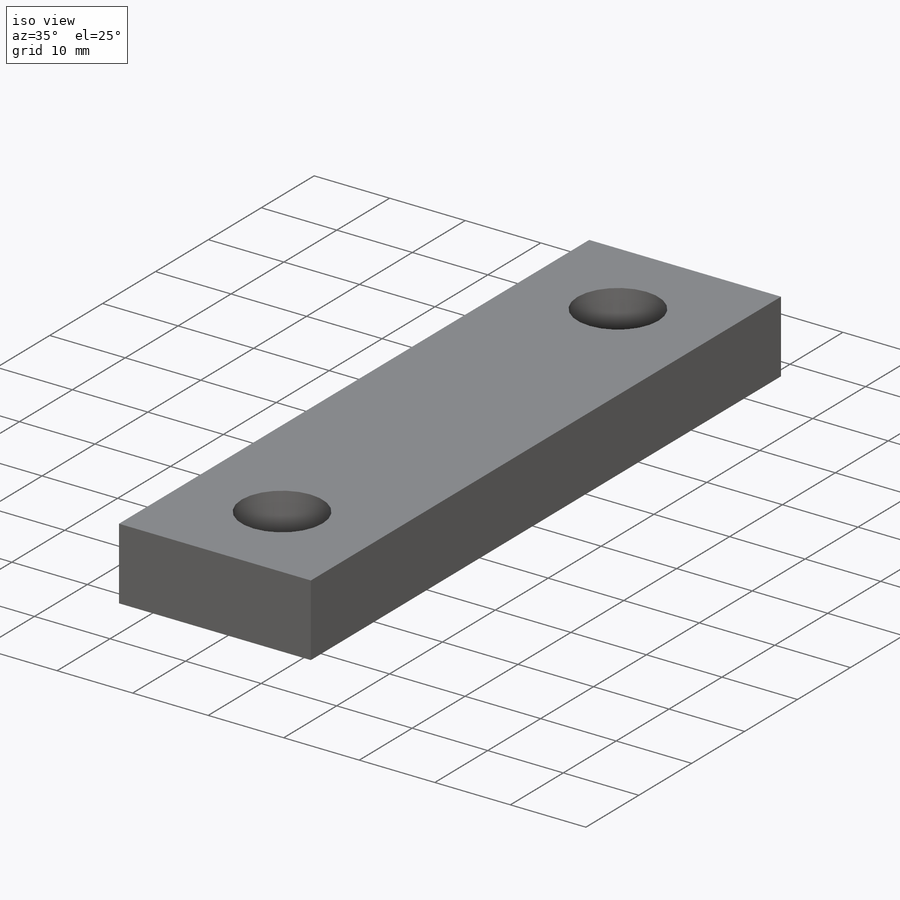
[diagram: iso view]
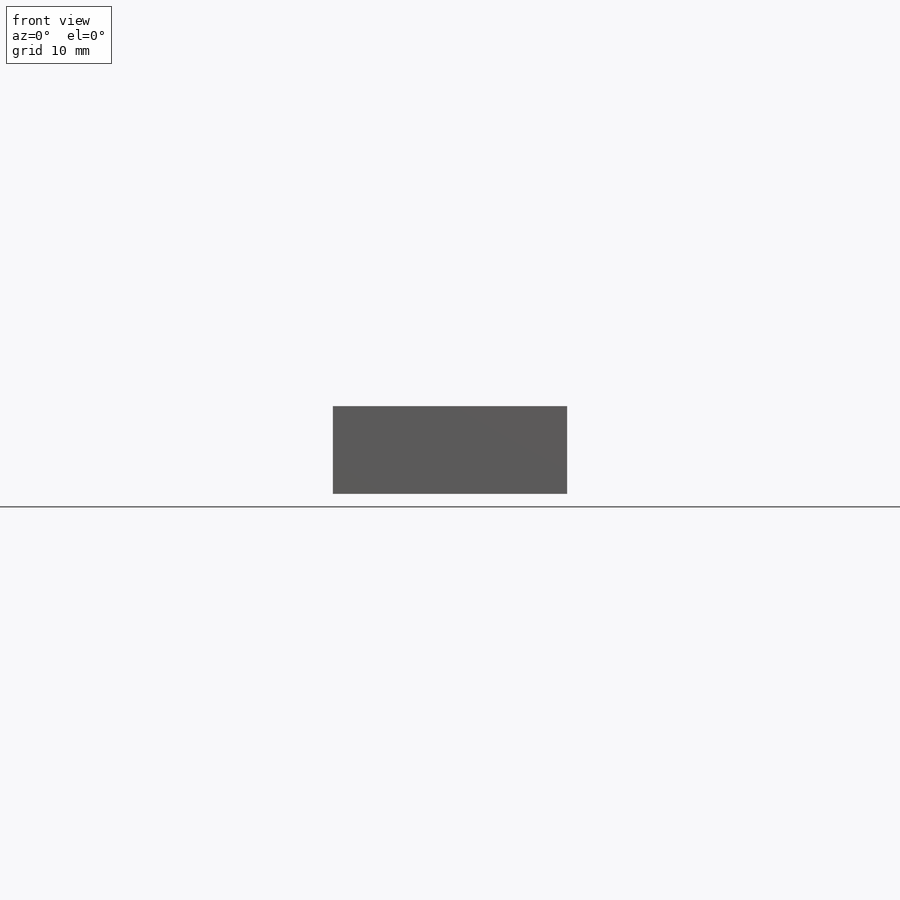
[diagram: front view]
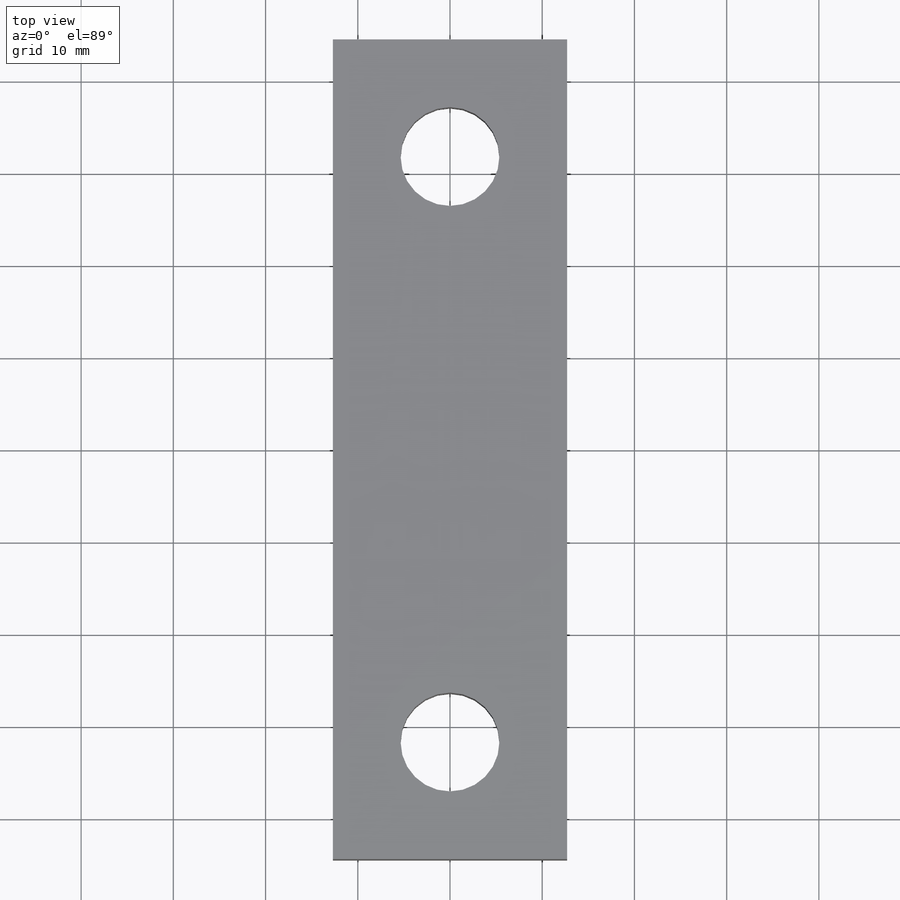
[diagram: top view]
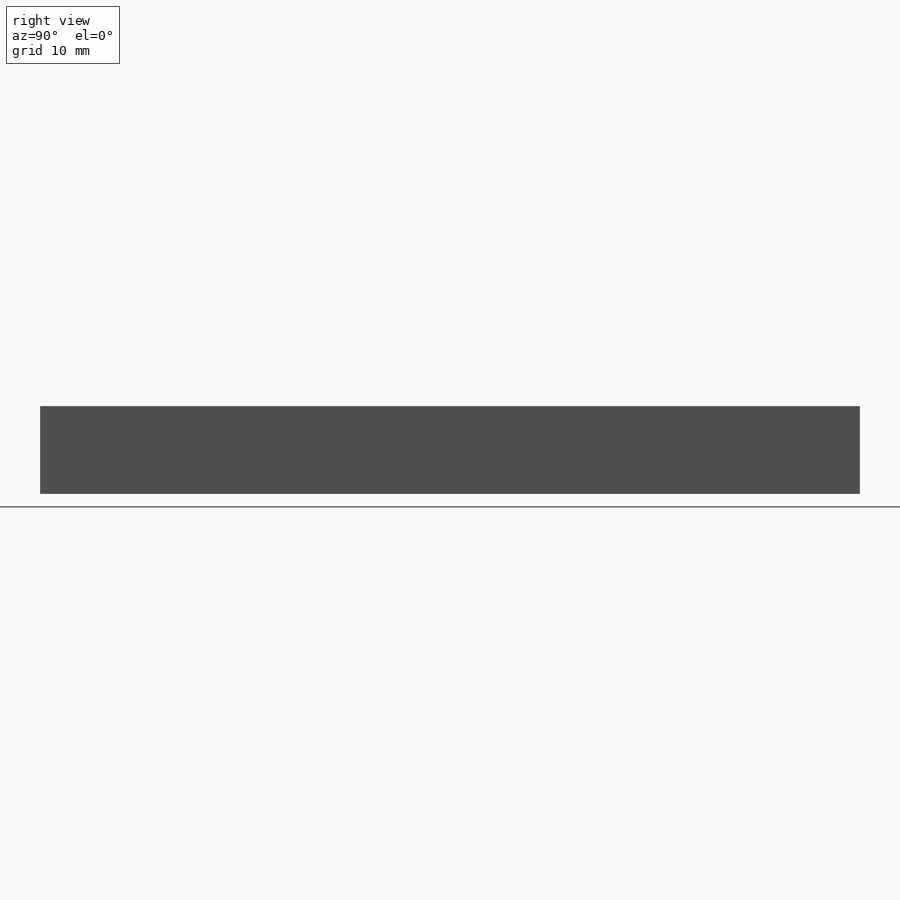
[diagram: right view]
SOLIDWORKS PART (.sldprt)
format: sldprt  version: not decoded by parser v0  size: 151,040 bytes
history: native  units: mm
features: sketch x4, material x1, extrude x1, hole x1, mirror x1 (+16 scaffold rows collapsed)
feature tree (24):
  scaffold x16  (default folders/planes/origin — collapsed)
  material  "Alloy Steel"
  sketch  "Sketch1"  dims[D1=25.4mm D2=9.525mm]
  extrude  "Extrude1"  Depth=88.9mm
  sketch  "Sketch2"  dims[D1=12.7mm]
  hole  "Tap Drill for 1/2-13 Tap1"  Diameter=10.71626mm Depth=9.525mm
  sketch  "3DSketch1"
  sketch  "Sketch4"  dims[hole-wizard template sketch: 59 standard entries collapsed; hole parameters kept: c18.Thru Hole Dia.=~10.71626mm c18.Thru Hole Depth=9.525mm]
  mirror  "Mirror1"
decode coverage: 5 of 7 modeling features carry decoded parameters
note: ~ marks probable driven/reference dimensions
note: suppression state not decoded; provenance and decode notes live in map.json
